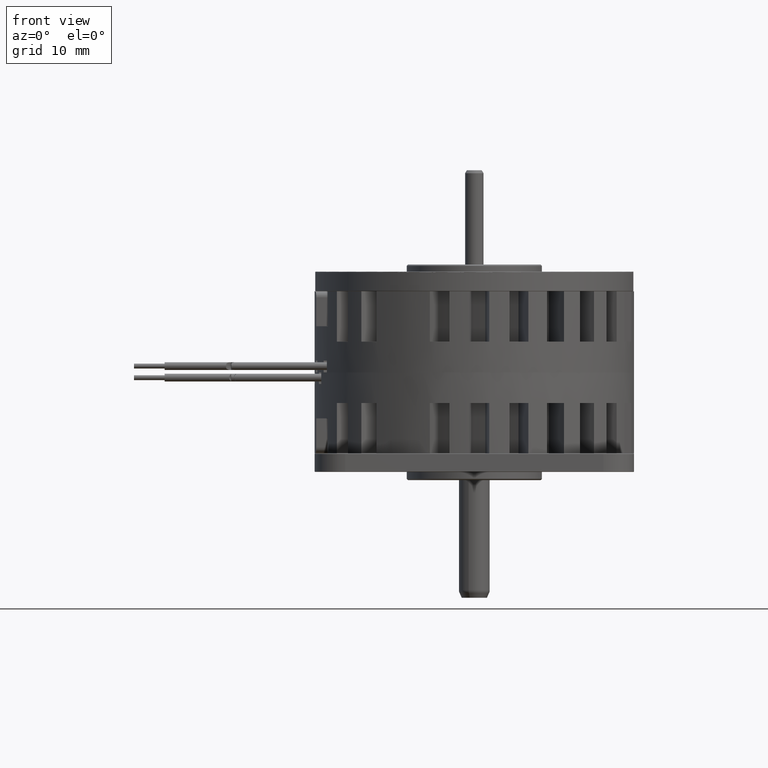
[diagram: clean part render]
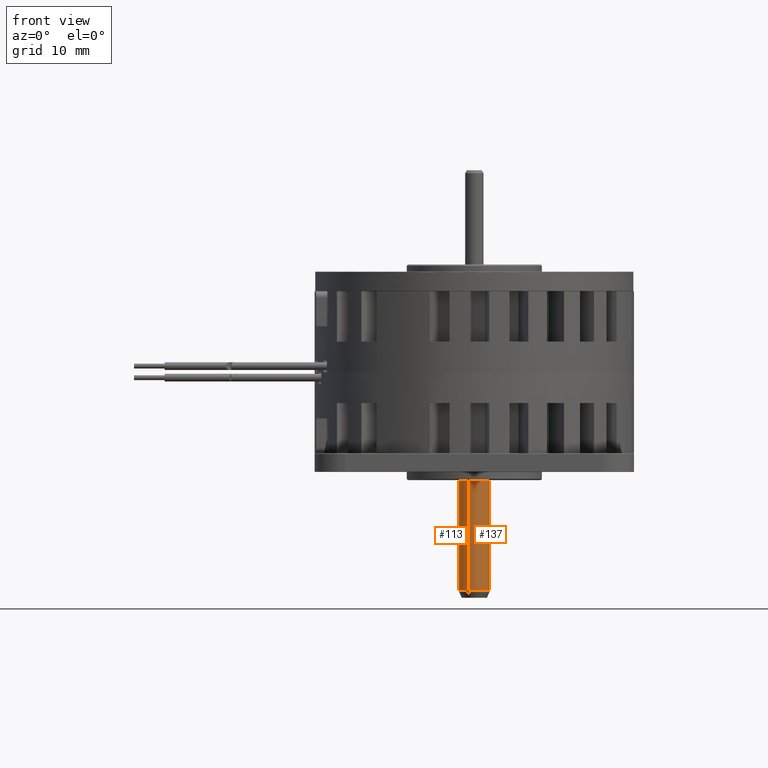
[diagram: same view with one multi-face feature highlighted, each face labeled with its STEP entity id]
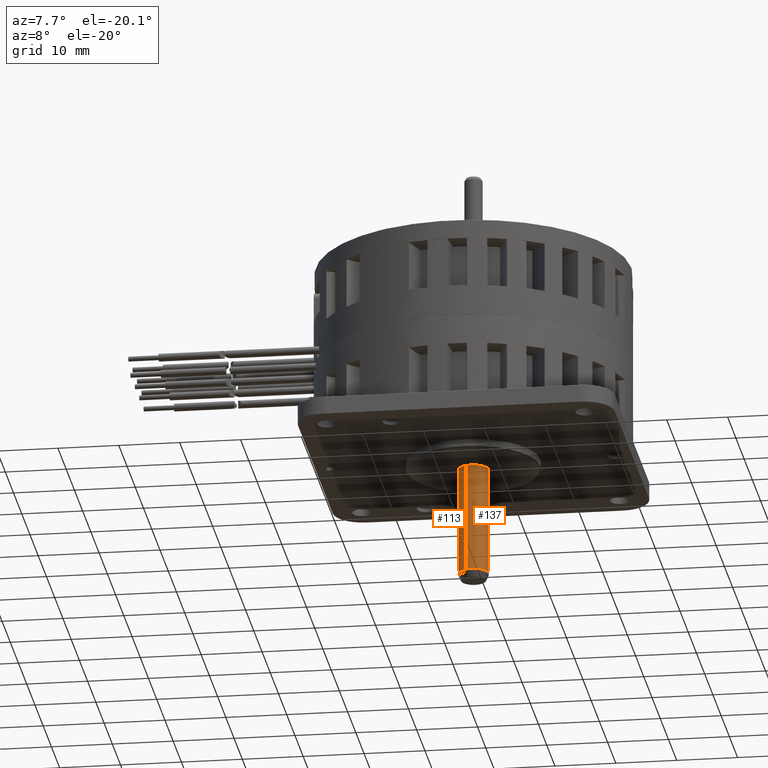
[diagram: same view with one multi-face feature highlighted, each face labeled with its STEP entity id]
A machine part, front view. The highlighted faces form ONE feature: a constant-radius fillet chain: 2 tangent blend faces with common blend radius 2.5 mm. The faces share edges in the B-rep.
A second angle (auxiliary view) of the same feature is appended — it is thin or edge-on in the first view.
Their STEP definitions:
[1] entity #137 (Cylinder):
#21=DIRECTION('',(0.E0,0.E0,-1.E0));
#22=VECTOR('',#21,2.447830533736E1);
#23=CARTESIAN_POINT('',(-2.5E0,0.E0,2.57E1));
#24=LINE('',#23,#22);
#25=CARTESIAN_POINT('',(0.E0,0.E0,2.57E1));
#26=DIRECTION('',(0.E0,0.E0,-1.E0));
#27=DIRECTION('',(1.E0,0.E0,0.E0));
#28=AXIS2_PLACEMENT_3D('',#25,#26,#27);
#30=DIRECTION('',(0.E0,0.E0,-1.E0));
#31=VECTOR('',#30,2.447830533736E1);
#32=CARTESIAN_POINT('',(2.5E0,0.E0,2.57E1));
#33=LINE('',#32,#31);
#44=CARTESIAN_POINT('',(0.E0,0.E0,1.221694662643E0));
#45=DIRECTION('',(0.E0,0.E0,1.E0));
#46=DIRECTION('',(-1.E0,0.E0,0.E0));
#47=AXIS2_PLACEMENT_3D('',#44,#45,#46);
#67=CARTESIAN_POINT('',(2.5E0,0.E0,1.221694662643E0));
#68=CARTESIAN_POINT('',(-2.5E0,0.E0,1.221694662643E0));
#69=VERTEX_POINT('',#67);
#70=VERTEX_POINT('',#68);
#79=CARTESIAN_POINT('',(-2.5E0,0.E0,2.57E1));
#80=CARTESIAN_POINT('',(2.5E0,0.E0,2.57E1));
#81=VERTEX_POINT('',#79);
#82=VERTEX_POINT('',#80);
#125=CARTESIAN_POINT('',(0.E0,0.E0,5.5E1));
#126=DIRECTION('',(0.E0,0.E0,-1.E0));
#127=DIRECTION('',(-1.E0,0.E0,0.E0));
#128=AXIS2_PLACEMENT_3D('',#125,#126,#127);
#129=CYLINDRICAL_SURFACE('',#128,2.5E0);
#130=ORIENTED_EDGE('',*,*,#120,.F.);
#131=ORIENTED_EDGE('',*,*,#109,.T.);
#133=ORIENTED_EDGE('',*,*,#132,.F.);
#134=ORIENTED_EDGE('',*,*,#106,.F.);
#135=EDGE_LOOP('',(#130,#131,#133,#134));
#136=FACE_OUTER_BOUND('',#135,.F.);
#137=ADVANCED_FACE('',(#136),#129,.T.);
#29=CIRCLE('',#28,2.5E0);
#48=CIRCLE('',#47,2.5E0);
#106=EDGE_CURVE('',#81,#70,#24,.T.);
#109=EDGE_CURVE('',#82,#69,#33,.T.);
#120=EDGE_CURVE('',#82,#81,#29,.T.);
#132=EDGE_CURVE('',#70,#69,#48,.T.);
[2] entity #113 (Cylinder):
#1=CARTESIAN_POINT('',(0.E0,0.E0,1.221694662643E0));
#2=DIRECTION('',(0.E0,0.E0,1.E0));
#3=DIRECTION('',(1.E0,0.E0,0.E0));
#4=AXIS2_PLACEMENT_3D('',#1,#2,#3);
#16=CARTESIAN_POINT('',(0.E0,0.E0,2.57E1));
#17=DIRECTION('',(0.E0,0.E0,-1.E0));
#18=DIRECTION('',(-1.E0,0.E0,0.E0));
#19=AXIS2_PLACEMENT_3D('',#16,#17,#18);
#21=DIRECTION('',(0.E0,0.E0,-1.E0));
#22=VECTOR('',#21,2.447830533736E1);
#23=CARTESIAN_POINT('',(-2.5E0,0.E0,2.57E1));
#24=LINE('',#23,#22);
#30=DIRECTION('',(0.E0,0.E0,-1.E0));
#31=VECTOR('',#30,2.447830533736E1);
#32=CARTESIAN_POINT('',(2.5E0,0.E0,2.57E1));
#33=LINE('',#32,#31);
#67=CARTESIAN_POINT('',(2.5E0,0.E0,1.221694662643E0));
#68=CARTESIAN_POINT('',(-2.5E0,0.E0,1.221694662643E0));
#69=VERTEX_POINT('',#67);
#70=VERTEX_POINT('',#68);
#79=CARTESIAN_POINT('',(-2.5E0,0.E0,2.57E1));
#80=CARTESIAN_POINT('',(2.5E0,0.E0,2.57E1));
#81=VERTEX_POINT('',#79);
#82=VERTEX_POINT('',#80);
#99=CARTESIAN_POINT('',(0.E0,0.E0,5.5E1));
#100=DIRECTION('',(0.E0,0.E0,-1.E0));
#101=DIRECTION('',(-1.E0,0.E0,0.E0));
#102=AXIS2_PLACEMENT_3D('',#99,#100,#101);
#103=CYLINDRICAL_SURFACE('',#102,2.5E0);
#105=ORIENTED_EDGE('',*,*,#104,.F.);
#107=ORIENTED_EDGE('',*,*,#106,.T.);
#108=ORIENTED_EDGE('',*,*,#88,.F.);
#110=ORIENTED_EDGE('',*,*,#109,.F.);
#111=EDGE_LOOP('',(#105,#107,#108,#110));
#112=FACE_OUTER_BOUND('',#111,.F.);
#113=ADVANCED_FACE('',(#112),#103,.T.);
#5=CIRCLE('',#4,2.5E0);
#20=CIRCLE('',#19,2.5E0);
#88=EDGE_CURVE('',#69,#70,#5,.T.);
#104=EDGE_CURVE('',#81,#82,#20,.T.);
#106=EDGE_CURVE('',#81,#70,#24,.T.);
#109=EDGE_CURVE('',#82,#69,#33,.T.);